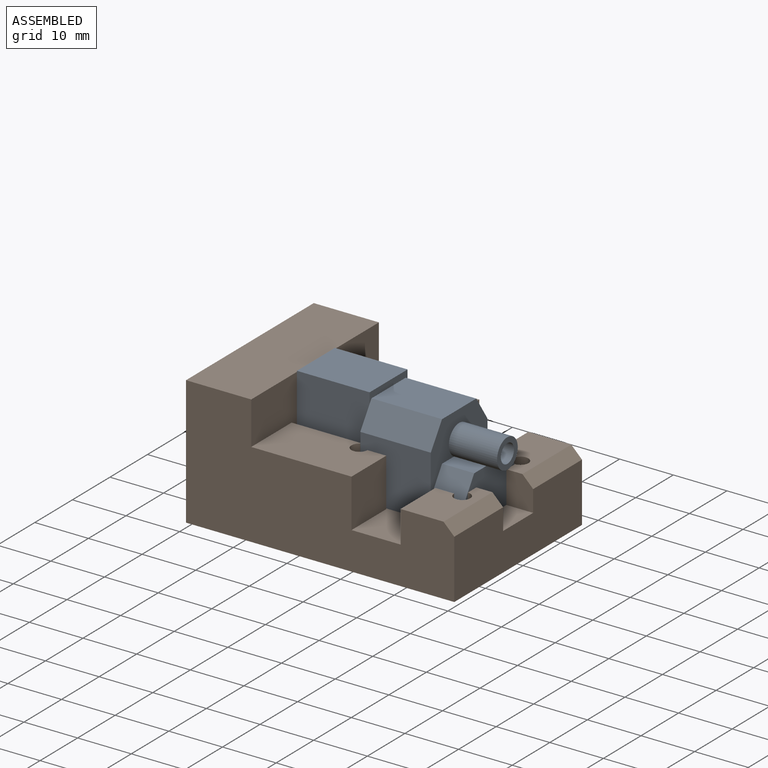
[diagram: assembled view]
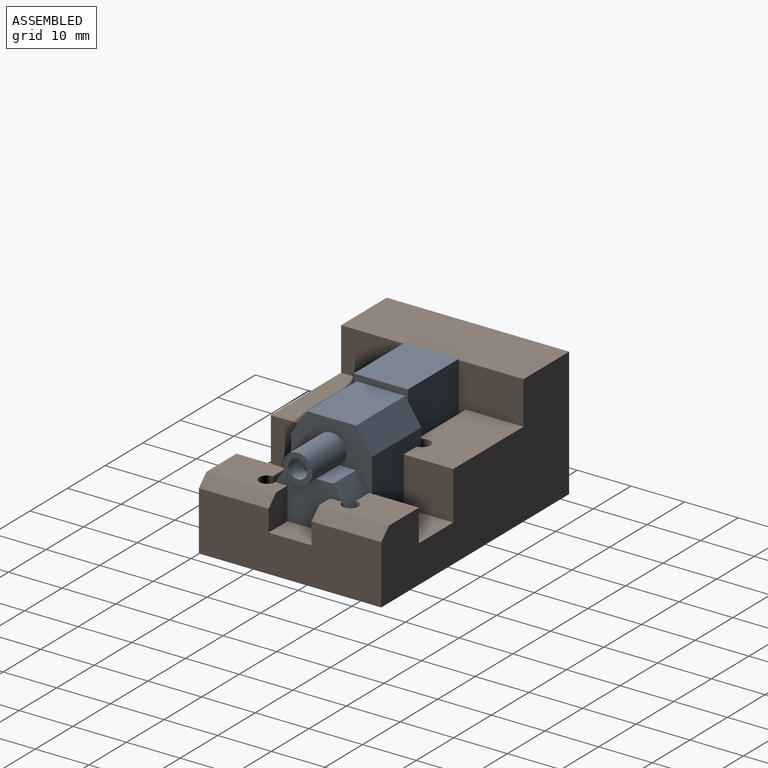
[diagram: assembled view, second angle]
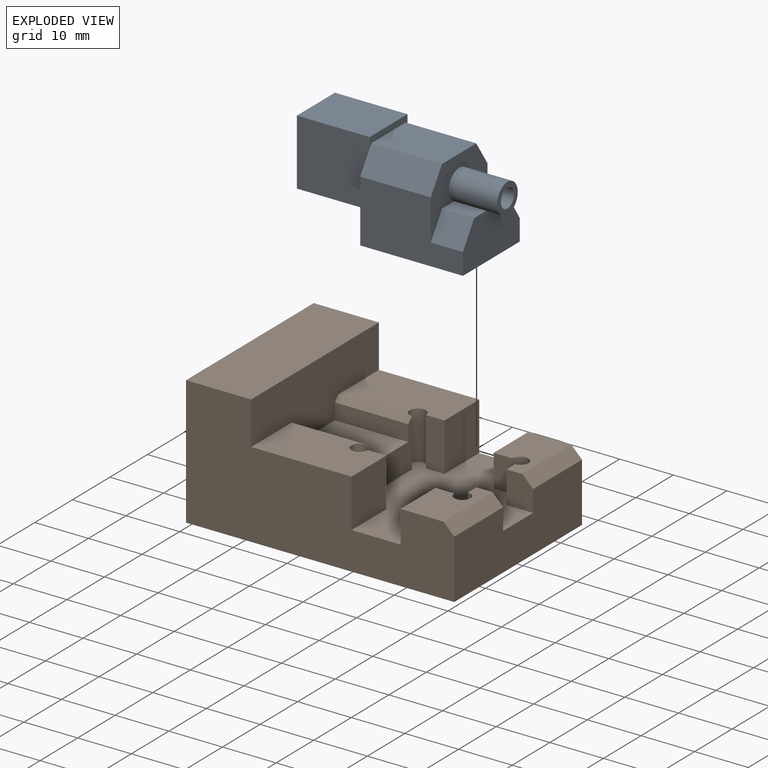
[diagram: exploded view]
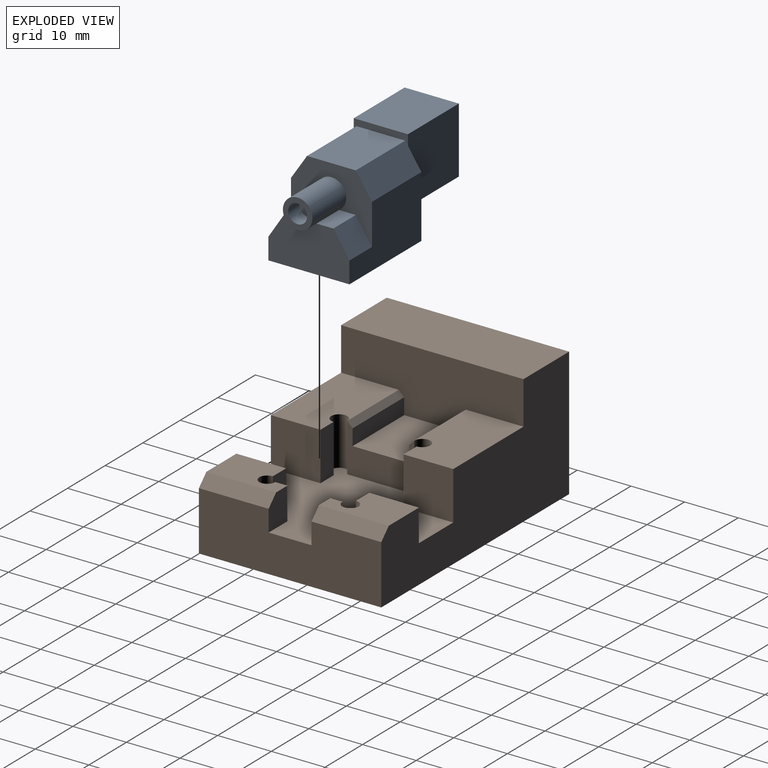
[diagram: exploded view, second angle]
ASSEMBLY  parts=2 mates=3
PART A: 23 faces, bbox 15.1x35.7x17.3 mm
  f0: plane 15.35x15.1mm, normal (0,1,0), area 117.9mm2, adj f1,f2,f3,f5,f6,f17,f18,f19
  f1: plane 19.15x11.6mm, normal (-1,0,0), area 176.5mm2, adj f0,f5,f6,f7,f14,f16
  f2: plane 19.15x11.6mm, normal (1,0,0), area 176.5mm2, adj f0,f3,f6,f7,f13,f16
  f3: plane 13.15x4.5mm, normal (0.83,0,0.55), area 71.1mm2, adj f0,f2,f4,f16,f22
  f4: plane 13.15x9.1mm, normal (0,0,1), area 119.7mm2, adj f3,f5,f16,f22
  f5: plane 13.15x4.5mm, normal (-0.83,0,0.55), area 71.1mm2, adj f0,f1,f4,f16,f22
  f6: plane 19.15x15.1mm, normal (0,0,-1), area 289.2mm2, adj f0,f1,f2,f7
  f7: plane 15.1x8.6mm, normal (0,-1,0), area 115.4mm2, adj f1,f2,f6,f9,f12,f13,f14,f15
  f8: cylinder r=1.75mm len=3.5mm, axis (0,1,0), area 33mm2, adj f10,f11
  f9: cylinder r=2.75mm len=9mm, axis (0,1,0), area 138.7mm2, adj f7,f10,f12,f15,f16
  f10: plane 5.5x5.5mm, normal (0,-1,0), area 14.1mm2, adj f8,f9
  f11: plane 3.5x3.5mm, normal (0,-1,0), area 9.6mm2, adj f8
  f12: plane 6x3.21mm, normal (0,0,1), area 19.2mm2, adj f7,f9,f13,f16
  f13: plane 6x4.6mm, normal (0.84,0,0.55), area 32.9mm2, adj f2,f7,f12,f16
  f14: plane 6x4.6mm, normal (-0.84,0,0.55), area 32.9mm2, adj f1,f7,f15,f16
  f15: plane 6x3.21mm, normal (0,0,1), area 19.2mm2, adj f7,f9,f14,f16
  f16: plane 15.1x12.1mm, normal (0,-1,0), area 90.4mm2, adj f1,f2,f3,f4,f5,f9,f12,f13
  f17: plane 13.55x12.3mm, normal (1,0,0), area 166.7mm2, adj f0,f18,f20,f21,f22
  f18: plane 13.55x10.1mm, normal (0,0,-1), area 136.9mm2, adj f0,f17,f19,f21
  f19: plane 13.55x12.3mm, normal (-1,0,0), area 166.7mm2, adj f0,f18,f20,f21,f22
  f20: plane 13.55x10.1mm, normal (0,0,1), area 136.9mm2, adj f17,f19,f21,f22
  f21: plane 12.3x10.1mm, normal (0,1,0), area 124.2mm2, adj f17,f18,f19,f20
  f22: plane 10.1x1.95mm, normal (0,-1,0), area 12.5mm2, adj f3,f4,f5,f17,f19,f20
PART B: 38 faces, bbox 50x34x24 mm
  f0: plane 18.7x10.75mm, normal (0,0,1), area 188.2mm2, adj f5,f16,f17,f23,f28,f33
  f1: plane 6x2.25mm, normal (-1,0,0), area 13.5mm2, adj f2,f9,f26,f30
  f2: plane 6x5mm, normal (0,1,0), area 28mm2, adj f1,f9,f10,f26,f36
  f3: plane 6x3.5mm, normal (0,1,0), area 21mm2, adj f9,f15,f26,f30
  f4: plane 12.5x9mm, normal (1,0,0), area 69.5mm2, adj f6,f7,f9,f27,f28,f29,f32,f33
  f5: plane 50x24mm, normal (0,-1,0), area 782.9mm2, adj f0,f8,f9,f10,f12,f15,f16,f23
  f6: plane 13.7x3mm, normal (0,-1,0), area 41.1mm2, adj f4,f23,f27,f29
  f7: plane 13.7x3mm, normal (0,1,0), area 41.1mm2, adj f4,f23,f27,f28
  f8: plane 34x24mm, normal (-1,0,0), area 777.5mm2, adj f5,f12,f13,f24,f34
  f9: plane 34x25.65mm, normal (0,0,1), area 527.3mm2, adj f1,f2,f3,f4,f5,f10,f11,f13
  f10: plane 34x11mm, normal (1,0,0), area 342mm2, adj f2,f5,f9,f12,f13,f14,f36,f37
  f11: plane 6x2.25mm, normal (-1,0,0), area 13.5mm2, adj f9,f14,f25,f31
  f12: plane 50x34mm, normal (0,0,-1), area 1700mm2, adj f5,f8,f10,f13
  f13: plane 50x24mm, normal (0,1,0), area 782.9mm2, adj f8,f9,f10,f12,f18,f20,f21,f23
  f14: plane 6x5mm, normal (0,-1,0), area 28mm2, adj f9,f10,f11,f25,f37
  f15: plane 9.25x6mm, normal (-1,0,0), area 55.5mm2, adj f3,f5,f9,f26
  f16: plane 9.25x9mm, normal (1,0,0), area 83.2mm2, adj f0,f5,f9,f17
  f17: plane 9x3.5mm, normal (0,1,0), area 31.5mm2, adj f0,f9,f16,f33
  f18: plane 9.25x6mm, normal (-1,0,0), area 55.5mm2, adj f9,f13,f19,f25
  f19: plane 6x3.5mm, normal (0,-1,0), area 21mm2, adj f9,f18,f25,f31
  f20: plane 18.7x10.75mm, normal (0,0,1), area 188.2mm2, adj f13,f21,f22,f23,f29,f32
  f21: plane 9.25x9mm, normal (1,0,0), area 83.2mm2, adj f9,f13,f20,f22
  f22: plane 9x3.5mm, normal (0,-1,0), area 31.5mm2, adj f9,f20,f21,f32
  f23: plane 34x12mm, normal (1,0,0), area 315mm2, adj f0,f5,f6,f7,f13,f20,f24,f27
  f24: plane 34x12.15mm, normal (0,0,1), area 413.1mm2, adj f5,f8,f13,f23
  f25: plane 13x8mm, normal (0,0,1), area 79.9mm2, adj f11,f13,f14,f18,f19,f31,f37
  f26: plane 13x8mm, normal (0,0,1), area 79.9mm2, adj f1,f2,f3,f5,f15,f30,f36
  f27: plane 13.7x10.5mm, normal (0,0,1), area 143.8mm2, adj f4,f6,f7,f23
  f28: plane 13.7x1mm, normal (0,0.71,0.71), area 19.4mm2, adj f0,f4,f7,f23
  f29: plane 13.7x1mm, normal (0,-0.71,0.71), area 19.4mm2, adj f4,f6,f20,f23
  f30: cylinder r=1.5mm len=6mm, axis (0,0,1), area 42.4mm2, adj f1,f3,f9,f26
  f31: cylinder r=1.5mm len=6mm, axis (0,0,1), area 42.4mm2, adj f9,f11,f19,f25
  f32: cylinder r=1.5mm len=9mm, axis (0,0,1), area 63.6mm2, adj f4,f9,f20,f22
  f33: cylinder r=1.5mm len=9mm, axis (0,0,1), area 63.6mm2, adj f0,f4,f9,f17
  f34: cylinder r=3.5mm len=7mm, axis (-1,0,0), area 131.9mm2, adj f8,f35
  f35: plane 7x7mm, normal (-1,0,0), area 38.5mm2, adj f34
  f36: plane 13x2mm, normal (0.71,0,0.71), area 36.8mm2, adj f2,f5,f10,f26
  f37: plane 13x2mm, normal (0.71,0,0.71), area 36.8mm2, adj f10,f13,f14,f25
PLACE A rot(axis=(0,0,1),90deg) t=(0.85,-16.99,2.05)mm
PLACE B at identity fixed
MATE parallel B.f9 <-> A.f6  axis (0,0,1) through (10.42,-34,-6)mm
MATE parallel A.f1 <-> B.f5  axis (0,-1,0) through (8.73,-24.54,-0.72)mm
MATE parallel B.f1 <-> A.f7  axis (-1,0,0) through (20,-22.12,-3)mm
